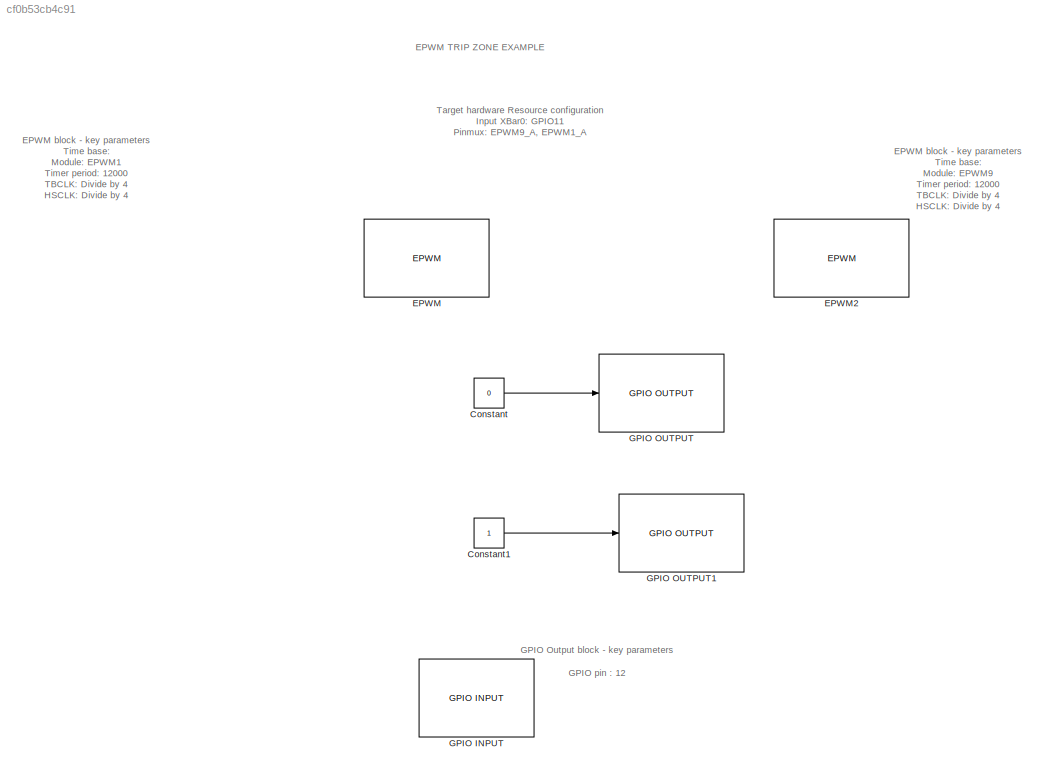
MODEL slx_cf0b53cb4c91
KIND model
CONFIG AbsTol = auto
CONFIG EnableMultiTasking = off
CONFIG FixedStep = auto
CONFIG MaxStep = auto
CONFIG MinStep = auto
CONFIG RelTol = 1e-3
CONFIG SampleTimeConstraint = Unconstrained
CONFIG SolverName = FixedStepAuto
CONFIG StartTime = 0.0
CONFIG StopTime = 10.0
BLOCK [Constant] Constant
  Value = 0
BLOCK [Constant] Constant1
BLOCK [Reference] EPWM  REF=peripheral_library_blocks_am263x/EPWM
  SourceBlock = peripheral_library_blocks_am263x/EPWM
  SourceType = EPWM_AM263X
BLOCK [Reference] EPWM2  REF=peripheral_library_blocks_am263x/EPWM
  SourceBlock = peripheral_library_blocks_am263x/EPWM
  SourceType = EPWM_AM263X
BLOCK [Reference] GPIO INPUT  REF=peripheral_library_blocks_am263x/GPIO INPUT
  SourceBlock = peripheral_library_blocks_am263x/GPIO INPUT
  SourceType = GPIO_IN_AM263X
BLOCK [Reference] GPIO OUTPUT  REF=peripheral_library_blocks_am263x/GPIO OUTPUT
  SourceBlock = peripheral_library_blocks_am263x/GPIO OUTPUT
  SourceType = GPIO_OUT_AM263X
BLOCK [Reference] GPIO OUTPUT1  REF=peripheral_library_blocks_am263x/GPIO OUTPUT
  SourceBlock = peripheral_library_blocks_am263x/GPIO OUTPUT
  SourceType = GPIO_OUT_AM263X
ANNOTATION (root): EPWM block - key parameters Time base: Module: EPWM1 Timer period: 12000 TBCLK: Divide by 4 HSCLK: Divide by 4 Counter mode: Up-Down count Sync in source: All Counter compare: CMPA value: 6000 CMPB value: 0 CMPC value: 0 CMPD value: 0 Action qualifier: Cntr equals to CMPAU: Set output pins to high Cntr equals to CMPAD: Set output pins to low Trip zone: Enable cyclic trip-zone: True CBC Latch clear...<+50ch>
ANNOTATION (root): EPWM block - key parameters Time base: Module: EPWM9 Timer period: 12000 TBCLK: Divide by 4 HSCLK: Divide by 4 Counter mode: Up-Down count Sync in source: All Counter compare: CMPA value: 6000 CMPB value: 0 CMPC value: 0 CMPD value: 0 Action qualifier: Cntr equals to CMPAU: Set output pins to high Cntr equals to CMPAD: Set output pins to low Trip zone: Enable one-shot trip-zone: True
ANNOTATION (root): GPIO Output block - key parameters GPIO pin : 12
ANNOTATION (root): Target hardware Resource configuration Input XBar0: GPIO11 Pinmux: EPWM9_A, EPWM1_A
ANNOTATION (root): EPWM TRIP ZONE EXAMPLE
LINE Constant1:1 -> GPIO OUTPUT1:1
LINE Constant:1 -> GPIO OUTPUT:1
